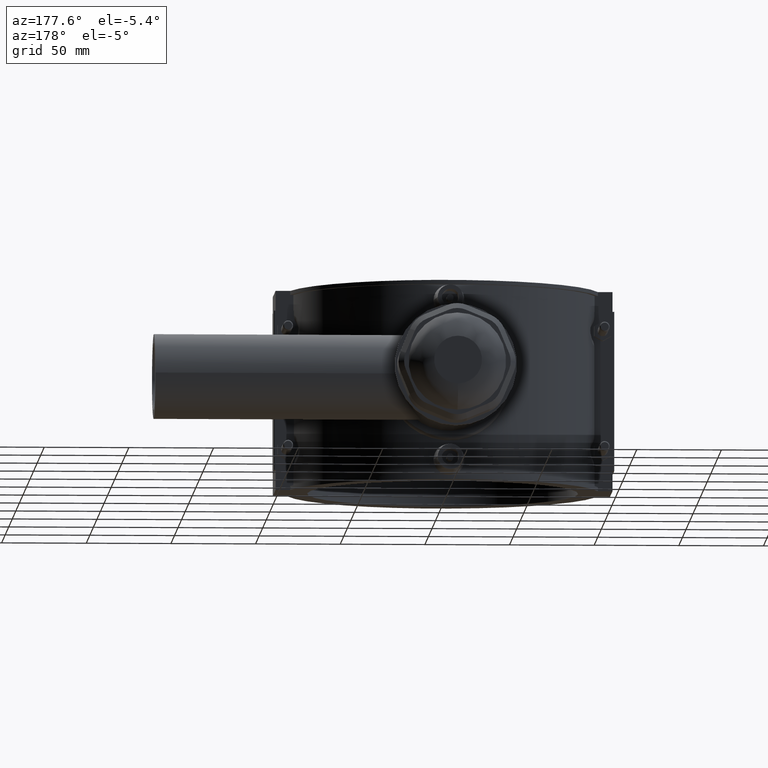
[diagram: clean part render]
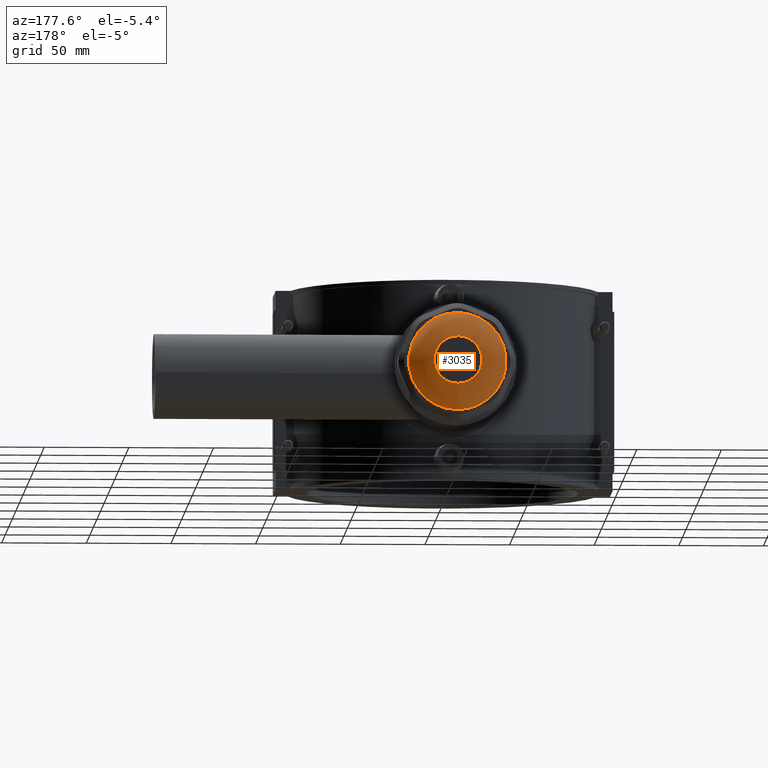
[diagram: same view with one face highlighted and labeled with its STEP entity id]
A machine part, auxiliary view. The second image highlights one B-rep face of the part: STEP entity #3035.
In plain terms, the highlighted face is a freeform B-spline surface patch.
Its self-contained STEP definition (entity closure, byte-faithful):
#24=(
BOUNDED_CURVE()
B_SPLINE_CURVE(2,(#4731,#4732,#4733),.UNSPECIFIED.,.F.,.F.)
B_SPLINE_CURVE_WITH_KNOTS((3,3),(-1.5707963267949,-0.407428895947171),
 .UNSPECIFIED.)
CURVE()
GEOMETRIC_REPRESENTATION_ITEM()
RATIONAL_B_SPLINE_CURVE((1.,0.835538748353422,1.))
REPRESENTATION_ITEM('')
);
#25=(
BOUNDED_SURFACE()
B_SPLINE_SURFACE(2,2,((#4702,#4703,#4704,#4705,#4706,#4707,#4708,#4709,
#4710),(#4711,#4712,#4713,#4714,#4715,#4716,#4717,#4718,#4719),(#4720,#4721,
#4722,#4723,#4724,#4725,#4726,#4727,#4728)),.UNSPECIFIED.,.F.,.T.,.F.)
B_SPLINE_SURFACE_WITH_KNOTS((3,3),(3,2,2,2,3),(0.407428895947171,1.5707963267949),
(-3.14159265358979,-1.5707963267949,0.,1.5707963267949,3.14159265358979),
 .UNSPECIFIED.)
GEOMETRIC_REPRESENTATION_ITEM()
RATIONAL_B_SPLINE_SURFACE(((1.,0.707106781186548,1.,0.707106781186548,1.,
0.707106781186548,1.,0.707106781186548,1.),(0.835538748353422,0.590815114904825,
0.835538748353422,0.590815114904825,0.835538748353422,0.590815114904825,
0.835538748353422,0.590815114904825,0.835538748353422),(1.,0.707106781186548,
1.,0.707106781186548,1.,0.707106781186548,1.,0.707106781186548,1.)))
REPRESENTATION_ITEM('')
SURFACE()
);
#731=CIRCLE('',#3241,28.8);
#732=CIRCLE('',#3242,14.1097174976109);
#893=FACE_OUTER_BOUND('',#1080,.T.);
#1080=EDGE_LOOP('',(#2192,#2193,#2194,#2195));
#1384=VERTEX_POINT('',#4700);
#1385=VERTEX_POINT('',#4729);
#1702=EDGE_CURVE('',#1384,#1384,#731,.T.);
#1703=EDGE_CURVE('',#1385,#1385,#732,.T.);
#1704=EDGE_CURVE('',#1385,#1384,#24,.T.);
#2192=ORIENTED_EDGE('',*,*,#1703,.T.);
#2193=ORIENTED_EDGE('',*,*,#1704,.T.);
#2194=ORIENTED_EDGE('',*,*,#1702,.T.);
#2195=ORIENTED_EDGE('',*,*,#1704,.F.);
#3035=ADVANCED_FACE('',(#893),#25,.T.);
#3241=AXIS2_PLACEMENT_3D('',#4701,#3620,#3621);
#3242=AXIS2_PLACEMENT_3D('',#4730,#3622,#3623);
#3620=DIRECTION('center_axis',(0.,1.,3.06161699786838E-16));
#3621=DIRECTION('ref_axis',(1.,0.,0.));
#3622=DIRECTION('center_axis',(0.,-1.,-3.06161699786838E-16));
#3623=DIRECTION('ref_axis',(-6.12323399573677E-17,-3.14739972593539E-16,
1.));
#4700=CARTESIAN_POINT('',(5.29047417231657E-15,208.34,-28.8));
#4701=CARTESIAN_POINT('Origin',(0.,208.34,3.92927925506428E-14));
#4702=CARTESIAN_POINT('Ctrl Pts',(1.76349139077219E-15,208.34,-28.8));
#4703=CARTESIAN_POINT('Ctrl Pts',(28.8,208.34,-28.8));
#4704=CARTESIAN_POINT('Ctrl Pts',(28.8,208.34,4.1056283941415E-14));
#4705=CARTESIAN_POINT('Ctrl Pts',(28.8,208.34,28.8));
#4706=CARTESIAN_POINT('Ctrl Pts',(-1.76349139077219E-15,208.34,28.8));
#4707=CARTESIAN_POINT('Ctrl Pts',(-28.8,208.34,28.8));
#4708=CARTESIAN_POINT('Ctrl Pts',(-28.8,208.34,3.75293011598707E-14));
#4709=CARTESIAN_POINT('Ctrl Pts',(-28.8,208.34,-28.8));
#4710=CARTESIAN_POINT('Ctrl Pts',(1.76349139077219E-15,208.34,-28.8));
#4711=CARTESIAN_POINT('Ctrl Pts',(1.50821121350704E-15,218.,-24.6309583229566));
#4712=CARTESIAN_POINT('Ctrl Pts',(24.6309583229567,218.,-24.6309583229566));
#4713=CARTESIAN_POINT('Ctrl Pts',(24.6309583229567,218.,4.37585257840907E-14));
#4714=CARTESIAN_POINT('Ctrl Pts',(24.6309583229567,218.,24.6309583229567));
#4715=CARTESIAN_POINT('Ctrl Pts',(-1.50821121350704E-15,218.,24.6309583229567));
#4716=CARTESIAN_POINT('Ctrl Pts',(-24.6309583229567,218.,24.6309583229567));
#4717=CARTESIAN_POINT('Ctrl Pts',(-24.6309583229567,218.,4.07421033570767E-14));
#4718=CARTESIAN_POINT('Ctrl Pts',(-24.6309583229567,218.,-24.6309583229566));
#4719=CARTESIAN_POINT('Ctrl Pts',(1.50821121350704E-15,218.,-24.6309583229566));
#4720=CARTESIAN_POINT('Ctrl Pts',(8.63971018516129E-16,218.,-14.1097174976108));
#4721=CARTESIAN_POINT('Ctrl Pts',(14.1097174976109,218.,-14.1097174976108));
#4722=CARTESIAN_POINT('Ctrl Pts',(14.1097174976109,218.,4.31142855890998E-14));
#4723=CARTESIAN_POINT('Ctrl Pts',(14.1097174976109,218.,14.1097174976109));
#4724=CARTESIAN_POINT('Ctrl Pts',(-8.63971018516129E-16,218.,14.1097174976109));
#4725=CARTESIAN_POINT('Ctrl Pts',(-14.1097174976109,218.,14.1097174976109));
#4726=CARTESIAN_POINT('Ctrl Pts',(-14.1097174976109,218.,4.13863435520676E-14));
#4727=CARTESIAN_POINT('Ctrl Pts',(-14.1097174976109,218.,-14.1097174976108));
#4728=CARTESIAN_POINT('Ctrl Pts',(8.63971018516129E-16,218.,-14.1097174976108));
#4729=CARTESIAN_POINT('',(2.59191305554839E-15,218.,-14.1097174976108));
#4730=CARTESIAN_POINT('Origin',(0.,218.,4.22503145705837E-14));
#4731=CARTESIAN_POINT('Ctrl Pts',(8.63971018516129E-16,218.,-14.1097174976108));
#4732=CARTESIAN_POINT('Ctrl Pts',(1.50821121350704E-15,218.,-24.6309583229566));
#4733=CARTESIAN_POINT('Ctrl Pts',(1.76349139077219E-15,208.34,-28.8));